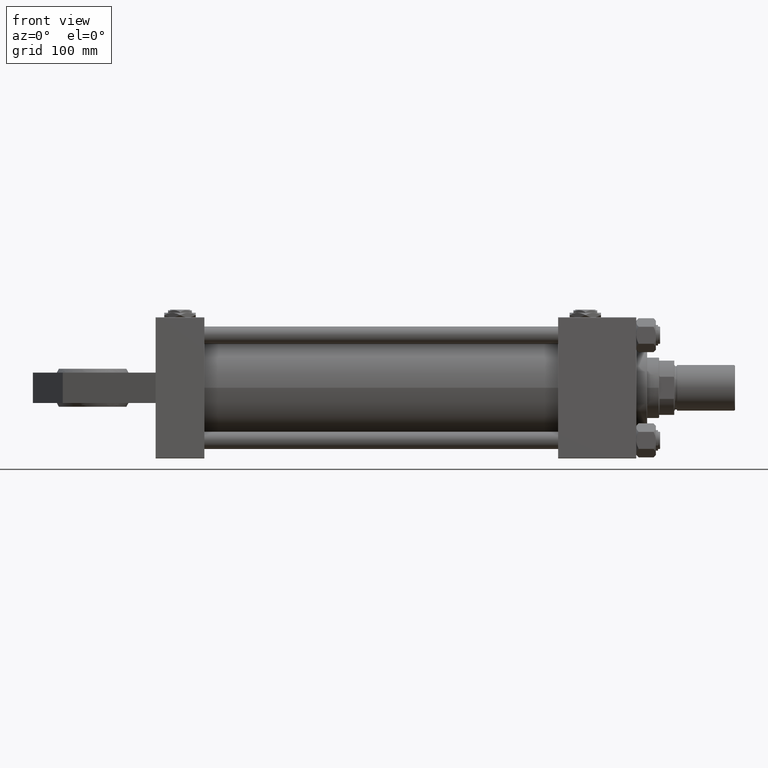
[diagram: clean part render]
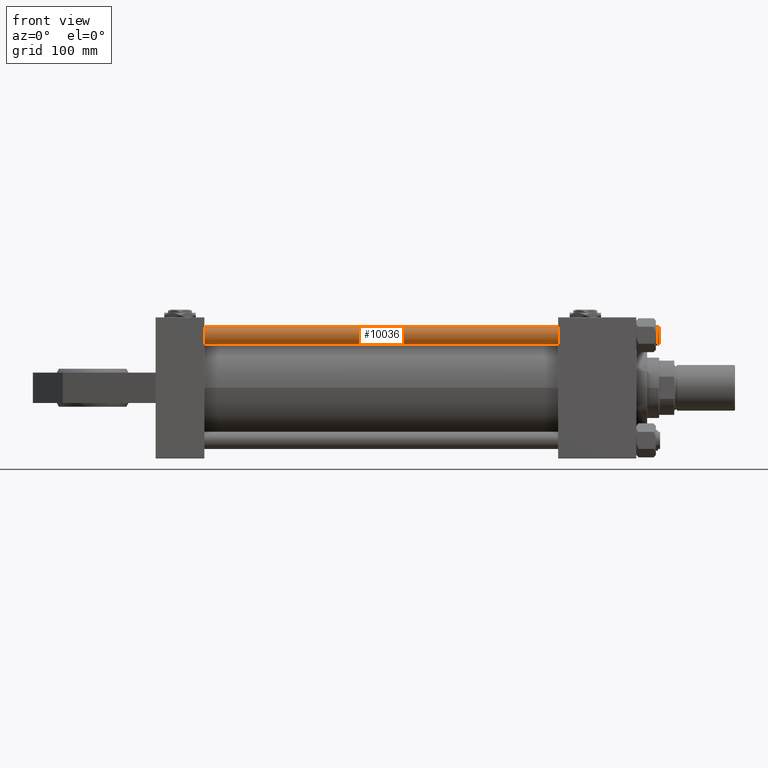
[diagram: same view with one face highlighted and labeled with its STEP entity id]
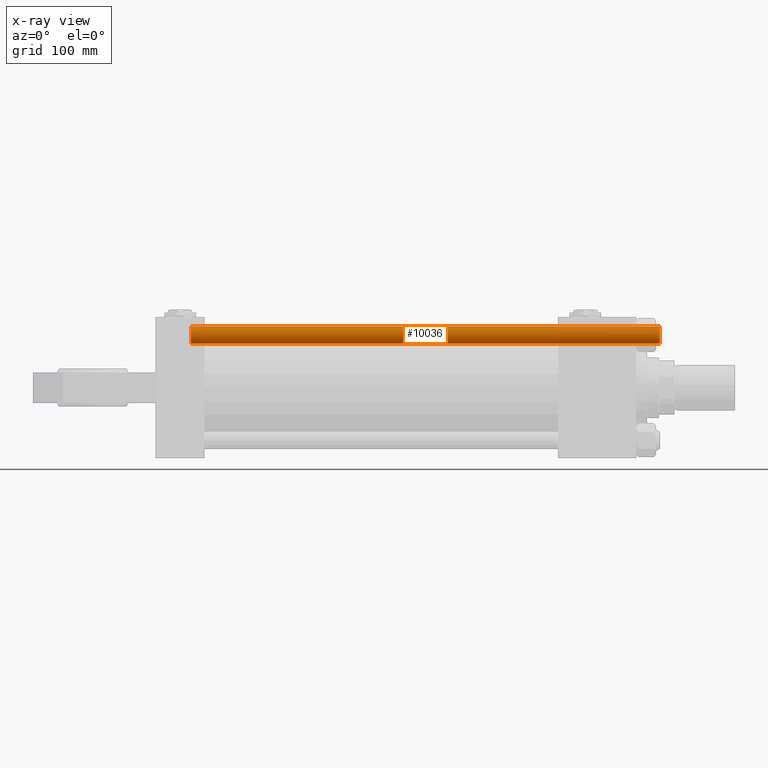
[diagram: x-ray of the same camera — body ghosted, the highlighted face saturated]
A machine part, front view. The second image highlights one B-rep face of the part: STEP entity #10036.
The next image is the same camera in x-ray: the body ghosted, the highlighted face saturated — about 0% of this face is hidden behind the body in this view.
In plain terms, the highlighted cylindrical surface (edge-blend (fillet) strip) has radius 8 mm, axis along (-1, 0, -0).
Its self-contained STEP definition (entity closure, byte-faithful):
#926 = ORIENTED_EDGE ( 'NONE', *, *, #43375, .T. ) ;
#7151 = ORIENTED_EDGE ( 'NONE', *, *, #33716, .T. ) ;
#7790 = CARTESIAN_POINT ( 'NONE',  ( 0.000000000000000000, 0.000000000000000000, 432.5000000000001705 ) ) ;
#8203 = CYLINDRICAL_SURFACE ( 'NONE', #53176, 8.000000000000000000 ) ;
#8320 = DIRECTION ( 'NONE',  ( 0.000000000000000000, 0.000000000000000000, -1.000000000000000000 ) ) ;
#8461 = DIRECTION ( 'NONE',  ( -1.000000000000000000, 0.000000000000000000, 0.000000000000000000 ) ) ;
#8469 = VERTEX_POINT ( 'NONE', #48822 ) ;
#8849 = AXIS2_PLACEMENT_3D ( 'NONE', #35162, #47787, #14729 ) ;
#10036 = ADVANCED_FACE ( 'NONE', ( #20320 ), #8203, .T. ) ;
#10200 = DIRECTION ( 'NONE',  ( -0.000000000000000000, -0.000000000000000000, -1.000000000000000000 ) ) ;
#10669 = VERTEX_POINT ( 'NONE', #34422 ) ;
#10879 = EDGE_CURVE ( 'NONE', #22324, #36930, #25229, .T. ) ;
#13541 = AXIS2_PLACEMENT_3D ( 'NONE', #7790, #8320, #37104 ) ;
#14729 = DIRECTION ( 'NONE',  ( 1.000000000000000000, 0.000000000000000000, 0.000000000000000000 ) ) ;
#15535 = CARTESIAN_POINT ( 'NONE',  ( 8.000000000000000000, 9.797174393178823685E-16, 432.5000000000001705 ) ) ;
#20320 = FACE_OUTER_BOUND ( 'NONE', #51790, .T. ) ;
#21733 = DIRECTION ( 'NONE',  ( -0.000000000000000000, -0.000000000000000000, -1.000000000000000000 ) ) ;
#22324 = VERTEX_POINT ( 'NONE', #15535 ) ;
#22343 = ORIENTED_EDGE ( 'NONE', *, *, #48740, .F. ) ;
#24625 = DIRECTION ( 'NONE',  ( -0.000000000000000000, -0.000000000000000000, -1.000000000000000000 ) ) ;
#25229 = LINE ( 'NONE', #41876, #42895 ) ;
#28920 = CARTESIAN_POINT ( 'NONE',  ( 0.000000000000000000, 0.000000000000000000, 433.0000000000000000 ) ) ;
#32939 = CIRCLE ( 'NONE', #8849, 8.000000000000000000 ) ;
#33716 = EDGE_CURVE ( 'NONE', #36930, #10669, #32939, .T. ) ;
#34422 = CARTESIAN_POINT ( 'NONE',  ( -8.000000000000000000, 0.000000000000000000, 0.5000000000003335110 ) ) ;
#35162 = CARTESIAN_POINT ( 'NONE',  ( 0.000000000000000000, 0.000000000000000000, 0.5000000000003335110 ) ) ;
#36142 = ORIENTED_EDGE ( 'NONE', *, *, #10879, .T. ) ;
#36930 = VERTEX_POINT ( 'NONE', #45443 ) ;
#37104 = DIRECTION ( 'NONE',  ( 1.000000000000000000, 0.000000000000000000, 0.000000000000000000 ) ) ;
#38724 = CARTESIAN_POINT ( 'NONE',  ( -8.000000000000000000, 0.000000000000000000, 433.0000000000000000 ) ) ;
#41052 = VECTOR ( 'NONE', #10200, 1000.000000000000000 ) ;
#41876 = CARTESIAN_POINT ( 'NONE',  ( 8.000000000000000000, 9.797174393178823685E-16, 433.0000000000000000 ) ) ;
#42484 = LINE ( 'NONE', #38724, #41052 ) ;
#42895 = VECTOR ( 'NONE', #21733, 1000.000000000000000 ) ;
#43375 = EDGE_CURVE ( 'NONE', #8469, #22324, #46163, .T. ) ;
#45443 = CARTESIAN_POINT ( 'NONE',  ( 8.000000000000000000, 9.797174393178823685E-16, 0.5000000000003335110 ) ) ;
#46163 = CIRCLE ( 'NONE', #13541, 8.000000000000000000 ) ;
#47787 = DIRECTION ( 'NONE',  ( -0.000000000000000000, -0.000000000000000000, 1.000000000000000000 ) ) ;
#48740 = EDGE_CURVE ( 'NONE', #8469, #10669, #42484, .T. ) ;
#48822 = CARTESIAN_POINT ( 'NONE',  ( -8.000000000000000000, 0.000000000000000000, 432.5000000000001705 ) ) ;
#51790 = EDGE_LOOP ( 'NONE', ( #926, #36142, #7151, #22343 ) ) ;
#53176 = AXIS2_PLACEMENT_3D ( 'NONE', #28920, #24625, #8461 ) ;